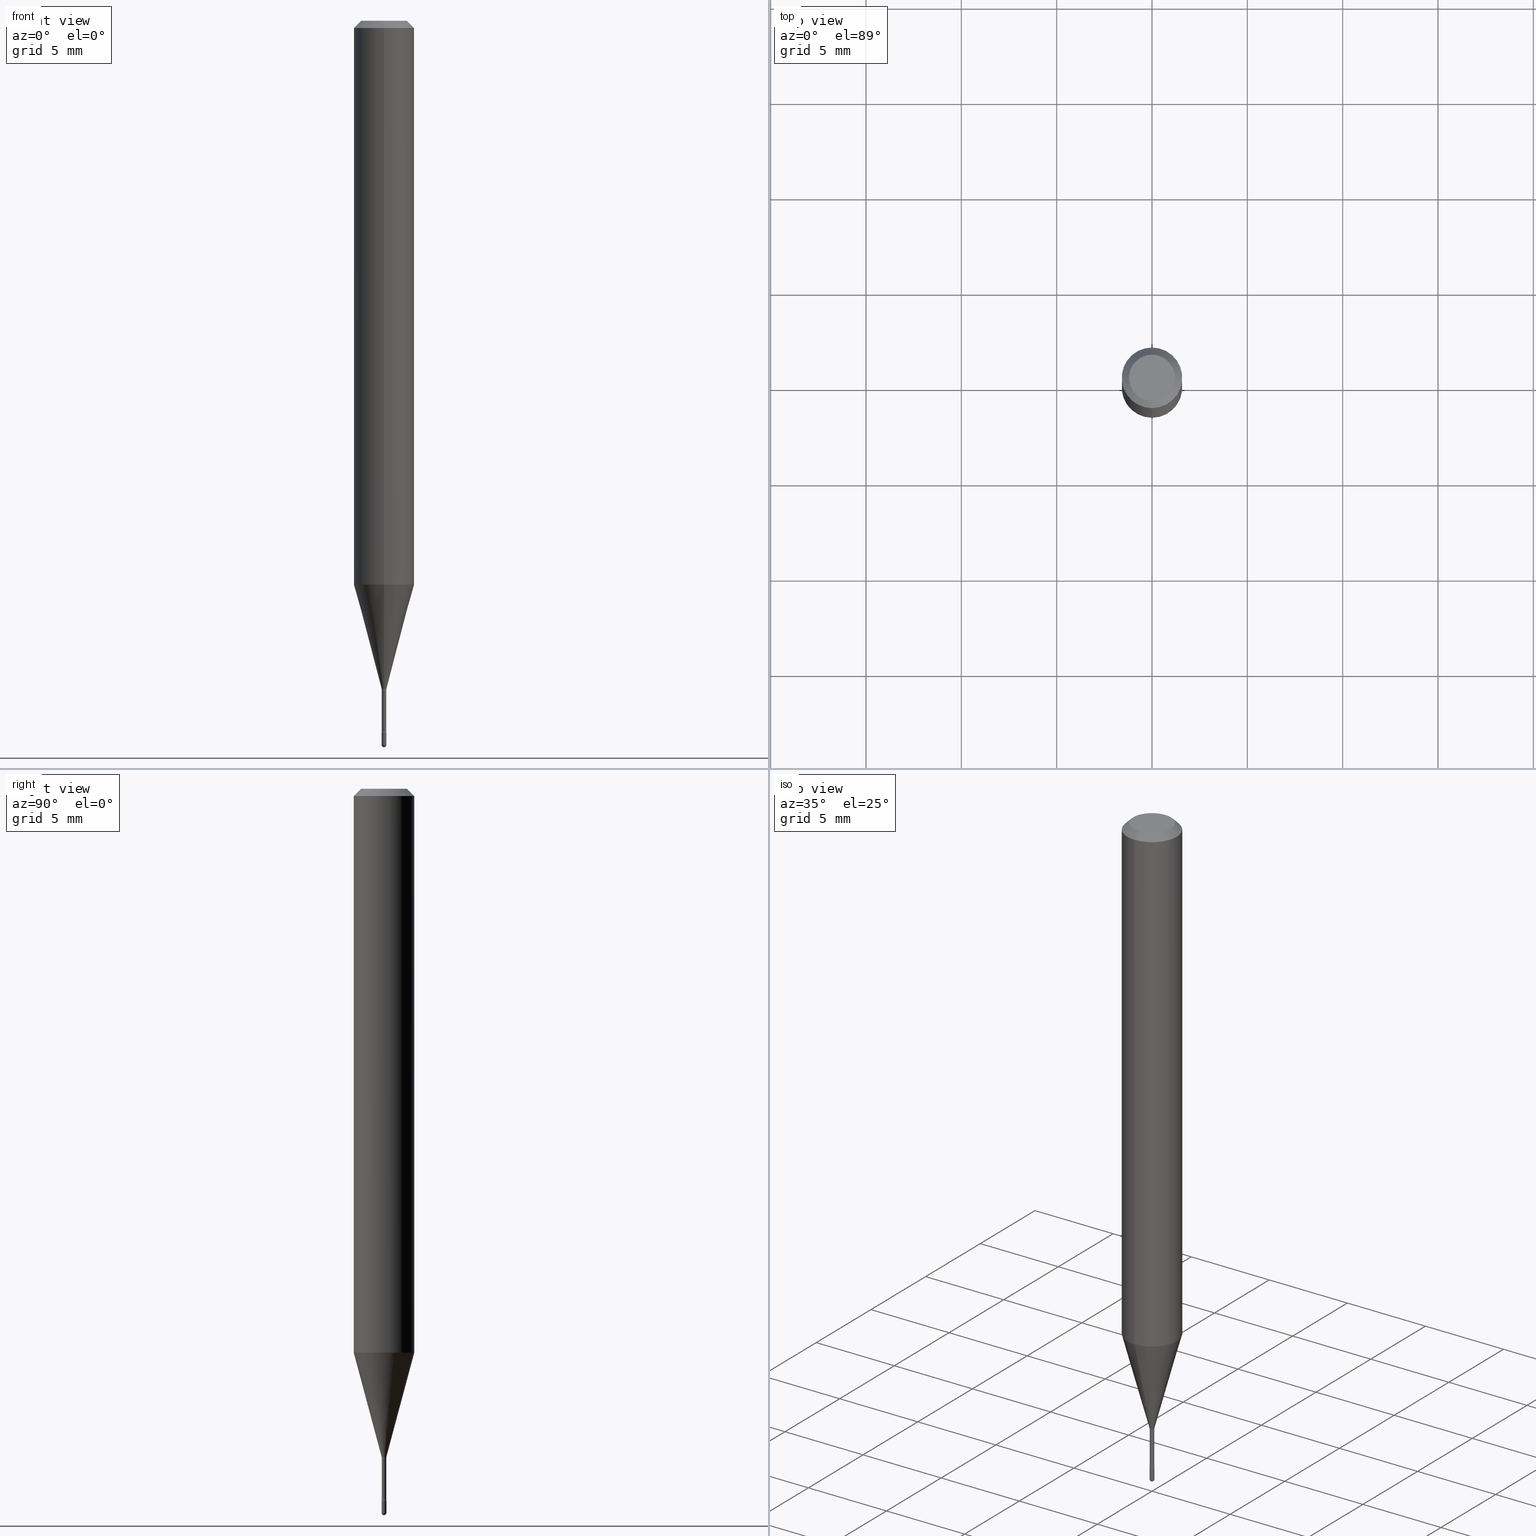
[diagram: canonical four-view strip — front | top / right | iso, engineering-drawing reading convention]
A machine part, canonical four-view strip (front | top / right | iso — engineering-drawing reading convention). The complete STEP part file that produces these views, byte-faithful:
ISO-10303-21;
HEADER;
FILE_DESCRIPTION (( 'STEP AP203' ),
    '1' );
FILE_NAME ('09784.STEP',
    '2024-04-10T01:15:53',
    ( '' ),
    ( '' ),
    'SwSTEP 2.0',
    'SolidWorks 2023',
    '' );
FILE_SCHEMA (( 'CONFIG_CONTROL_DESIGN' ));
ENDSEC;

DATA;
#1 = CARTESIAN_POINT ( 'NONE',  ( -0.004999999999999997502, -5.140593948046958933E-15, -1.495000000000000107 ) ) ;
#2 = CIRCLE ( 'NONE', #360, 0.01500000000000003240 ) ;
#3 = EDGE_CURVE ( 'NONE', #276, #558, #488, .T. ) ;
#4 = DIRECTION ( 'NONE',  ( -6.982962677686265133E-15, -1.000000000000000000, 0.000000000000000000 ) ) ;
#5 = EDGE_CURVE ( 'NONE', #304, #309, #97, .T. ) ;
#6 = CARTESIAN_POINT ( 'NONE',  ( 2.848553965249208882E-29, -4.063190057290084953E-15, -1.164287463322519312 ) ) ;
#7 = DIRECTION ( 'NONE',  ( -1.000000000000000000, 6.982962677686265922E-15, -4.883557194083112340E-29 ) ) ;
#8 = ORIENTED_EDGE ( 'NONE', *, *, #533, .T. ) ;
#9 = CARTESIAN_POINT ( 'NONE',  ( 3.491481338846726493E-17, 0.004999999999994865323, -1.470000000000000195 ) ) ;
#10 = DIRECTION ( 'NONE',  ( -2.446607092307177715E-29, 3.489851248329160132E-15, 1.000000000000000000 ) ) ;
#11 = AXIS2_PLACEMENT_3D ( 'NONE', #503, #19, #16 ) ;
#12 = AXIS2_PLACEMENT_3D ( 'NONE', #478, #86, #164 ) ;
#13 = DIRECTION ( 'NONE',  ( 1.000000000000000000, 0.000000000000000000, 0.000000000000000000 ) ) ;
#14 = FACE_OUTER_BOUND ( 'NONE', #565, .T. ) ;
#15 = APPROVAL_ROLE ( '' ) ;
#16 = DIRECTION ( 'NONE',  ( 1.000000000000000000, -6.982962677686336130E-15, 0.000000000000000000 ) ) ;
#17 = EDGE_LOOP ( 'NONE', ( #147, #405 ) ) ;
#18 = CALENDAR_DATE ( 2024, 9, 4 ) ;
#19 = DIRECTION ( 'NONE',  ( -2.445468806185136597E-29, 3.491481338843145583E-15, 1.000000000000000000 ) ) ;
#20 = EDGE_LOOP ( 'NONE', ( #424, #27, #563, #430, #238 ) ) ;
#21 = CALENDAR_DATE ( 2024, 9, 4 ) ;
#22 = SECURITY_CLASSIFICATION ( '', '', #193 ) ;
#23 = CARTESIAN_POINT ( 'NONE',  ( 3.669910638460787013E-31, -5.234776872493768941E-17, -0.01500000000000008271 ) ) ;
#24 = ADVANCED_FACE ( 'NONE', ( #14 ), #79, .T. ) ;
#25 = ORIENTED_EDGE ( 'NONE', *, *, #150, .T. ) ;
#26 = CARTESIAN_POINT ( 'NONE',  ( 0.004999999999999997502, -5.167392381487856456E-15, -1.470000000000000195 ) ) ;
#27 = ORIENTED_EDGE ( 'NONE', *, *, #135, .T. ) ;
#28 = CARTESIAN_POINT ( 'NONE',  ( 3.381149316398664900E-29, -4.822886437190006864E-15, -1.381974787463811083 ) ) ;
#29 = EDGE_LOOP ( 'NONE', ( #337, #560, #76, #165 ) ) ;
#30 = ADVANCED_FACE ( 'NONE', ( #268 ), #535, .T. ) ;
#31 = AXIS2_PLACEMENT_3D ( 'NONE', #58, #139, #311 ) ;
#32 = CONICAL_SURFACE ( 'NONE', #452, 0.005211112605663980289, 0.2617993877991499629 ) ;
#33 = DIRECTION ( 'NONE',  ( 1.000000000000000000, -6.982962677686265922E-15, 4.876176775795935793E-29 ) ) ;
#34 = ORIENTED_EDGE ( 'NONE', *, *, #335, .F. ) ;
#35 = CARTESIAN_POINT ( 'NONE',  ( -1.169113584055446105E-44, 1.669184350826100908E-30, 4.780733988912460139E-16 ) ) ;
#36 = VERTEX_POINT ( 'NONE', #439 ) ;
#37 = CYLINDRICAL_SURFACE ( 'NONE', #325, 0.004999999999999997502 ) ;
#38 = ORIENTED_EDGE ( 'NONE', *, *, #292, .F. ) ;
#39 = CYLINDRICAL_SURFACE ( 'NONE', #179, 0.004699999999999990644 ) ;
#40 = AXIS2_PLACEMENT_3D ( 'NONE', #188, #356, #318 ) ;
#41 = VECTOR ( 'NONE', #559, 39.37007874015748143 ) ;
#42 = EDGE_CURVE ( 'NONE', #479, #508, #414, .T. ) ;
#43 = ORIENTED_EDGE ( 'NONE', *, *, #192, .F. ) ;
#44 = CARTESIAN_POINT ( 'NONE',  ( -0.004999999999999997502, -5.140593948046958933E-15, -1.470000000000000195 ) ) ;
#45 = ORIENTED_EDGE ( 'NONE', *, *, #272, .F. ) ;
#46 = DESIGN_CONTEXT ( 'detailed design', #53, 'design' ) ;
#47 = CARTESIAN_POINT ( 'NONE',  ( -1.169113584055446105E-44, 1.669184350826100908E-30, 4.780733988912460139E-16 ) ) ;
#48 = ADVANCED_FACE ( 'NONE', ( #190 ), #486, .F. ) ;
#49 = EDGE_CURVE ( 'NONE', #137, #339, #451, .T. ) ;
#50 = DIRECTION ( 'NONE',  ( -2.445468806185136877E-29, 3.491481338843145188E-15, 1.000000000000000000 ) ) ;
#51 = CARTESIAN_POINT ( 'NONE',  ( 3.446132268440079635E-17, 0.004699999999994861066, -1.467015037688680135 ) ) ;
#52 = CIRCLE ( 'NONE', #317, 0.06250000000000000000 ) ;
#53 = APPLICATION_CONTEXT ( 'configuration controlled 3d designs of mechanical parts and assemblies' ) ;
#54 = VERTEX_POINT ( 'NONE', #441 ) ;
#55 = DIRECTION ( 'NONE',  ( -2.446607092307177715E-29, 3.489851248329160132E-15, 1.000000000000000000 ) ) ;
#56 = ORIENTED_EDGE ( 'NONE', *, *, #235, .F. ) ;
#57 = DIRECTION ( 'NONE',  ( -6.982962677686265922E-15, -1.000000000000000000, 3.489851248329160132E-15 ) ) ;
#58 = CARTESIAN_POINT ( 'NONE',  ( 3.655975865246779122E-29, -5.219764601570503141E-15, -1.495000000000000107 ) ) ;
#59 = CC_DESIGN_PERSON_AND_ORGANIZATION_ASSIGNMENT ( #239, #330, ( #22 ) ) ;
#60 = CIRCLE ( 'NONE', #107, 0.004999999999999997502 ) ;
#61 = PERSON_AND_ORGANIZATION ( #496, #443 ) ;
#62 = DIRECTION ( 'NONE',  ( -2.445468806185136877E-29, 3.491481338843145188E-15, 1.000000000000000000 ) ) ;
#63 = APPROVAL_ROLE ( '' ) ;
#64 = CARTESIAN_POINT ( 'NONE',  ( -3.638900483453828495E-17, -0.005211112605668789810, -1.378092501787273161 ) ) ;
#65 = EDGE_CURVE ( 'NONE', #54, #174, #403, .T. ) ;
#66 = EDGE_CURVE ( 'NONE', #465, #267, #256, .T. ) ;
#67 = DATE_AND_TIME ( #243, #99 ) ;
#68 = CARTESIAN_POINT ( 'NONE',  ( 0.000000000000000000, 0.000000000000000000, 0.000000000000000000 ) ) ;
#69 = VERTEX_POINT ( 'NONE', #1 ) ;
#70 = AXIS2_PLACEMENT_3D ( 'NONE', #326, #114, #194 ) ;
#71 = AXIS2_PLACEMENT_3D ( 'NONE', #346, #476, #33 ) ;
#72 = PERSON_AND_ORGANIZATION_ROLE ( 'design_supplier' ) ;
#73 = DIRECTION ( 'NONE',  ( 2.446607092307177715E-29, -3.489851248329160132E-15, -1.000000000000000000 ) ) ;
#74 = ORIENTED_EDGE ( 'NONE', *, *, #472, .T. ) ;
#75 = LINE ( 'NONE', #64, #125 ) ;
#76 = ORIENTED_EDGE ( 'NONE', *, *, #150, .F. ) ;
#77 = CARTESIAN_POINT ( 'NONE',  ( 3.589209395730405961E-29, -5.119664260595489869E-15, -1.467015037688680135 ) ) ;
#78 = EDGE_LOOP ( 'NONE', ( #34, #241, #247, #45 ) ) ;
#79 = CONICAL_SURFACE ( 'NONE', #422, 0.005211112605663980289, 0.2617993877991499629 ) ;
#80 = VECTOR ( 'NONE', #392, 39.37007874015748143 ) ;
#81 = CARTESIAN_POINT ( 'NONE',  ( 3.339550858072464225E-17, 0.004699999999999990644, 4.616710980240990353E-16 ) ) ;
#82 = VERTEX_POINT ( 'NONE', #51 ) ;
#83 = DIRECTION ( 'NONE',  ( -2.446607092307177715E-29, 3.489851248329160132E-15, 1.000000000000000000 ) ) ;
#84 = ORIENTED_EDGE ( 'NONE', *, *, #168, .T. ) ;
#85 = EDGE_CURVE ( 'NONE', #36, #518, #160, .T. ) ;
#86 = DIRECTION ( 'NONE',  ( 2.446607092307177715E-29, -3.489851248329160132E-15, -1.000000000000000000 ) ) ;
#87 = EDGE_LOOP ( 'NONE', ( #220, #228, #218, #387 ) ) ;
#88 = LINE ( 'NONE', #266, #90 ) ;
#89 = AXIS2_PLACEMENT_3D ( 'NONE', #28, #331, #110 ) ;
#90 = VECTOR ( 'NONE', #435, 39.37007874015748143 ) ;
#91 = ORIENTED_EDGE ( 'NONE', *, *, #428, .T. ) ;
#92 = CARTESIAN_POINT ( 'NONE',  ( 3.371650888728085005E-29, -4.809337837675370251E-15, -1.378092501787273161 ) ) ;
#93 = DIRECTION ( 'NONE',  ( -6.982962677686265922E-15, -1.000000000000000000, 0.000000000000000000 ) ) ;
#94 = EDGE_CURVE ( 'NONE', #82, #508, #510, .T. ) ;
#95 = CYLINDRICAL_SURFACE ( 'NONE', #554, 0.06250000000000000000 ) ;
#96 = DIRECTION ( 'NONE',  ( -1.000000000000000000, 7.105427357601001070E-15, -4.926315508542082329E-29 ) ) ;
#97 = CIRCLE ( 'NONE', #187, 0.04749999999999999362 ) ;
#98 = CYLINDRICAL_SURFACE ( 'NONE', #70, 0.004699999999999990644 ) ;
#99 = LOCAL_TIME ( 21, 15, 53.00000000000000000, #103 ) ;
#100 = ORIENTED_EDGE ( 'NONE', *, *, #42, .T. ) ;
#101 = FACE_OUTER_BOUND ( 'NONE', #299, .T. ) ;
#102 = ORIENTED_EDGE ( 'NONE', *, *, #166, .F. ) ;
#103 = COORDINATED_UNIVERSAL_TIME_OFFSET ( 5, 0, .BEHIND. ) ;
#104 = CARTESIAN_POINT ( 'NONE',  ( 3.491481338846802914E-17, 0.004999999999994800270, -1.495000000000000107 ) ) ;
#105 = VECTOR ( 'NONE', #495, 39.37007874015748143 ) ;
#106 = CIRCLE ( 'NONE', #224, 0.004699999999999980235 ) ;
#107 = AXIS2_PLACEMENT_3D ( 'NONE', #328, #202, #552 ) ;
#108 = CC_DESIGN_APPROVAL ( #447, ( #216 ) ) ;
#109 = CALENDAR_DATE ( 2024, 9, 4 ) ;
#110 = DIRECTION ( 'NONE',  ( -6.982962677686265922E-15, -1.000000000000000000, 0.000000000000000000 ) ) ;
#111 = ADVANCED_FACE ( 'NONE', ( #141 ), #98, .T. ) ;
#112 = PRODUCT_DEFINITION ( 'UNKNOWN', '', #216, #46 ) ;
#113 = DATE_TIME_ROLE ( 'creation_date' ) ;
#114 = DIRECTION ( 'NONE',  ( -2.446607092307177715E-29, 3.489851248329160132E-15, 1.000000000000000000 ) ) ;
#115 = CARTESIAN_POINT ( 'NONE',  ( 3.589209395730405961E-29, -5.119664260595489869E-15, -1.467015037688680135 ) ) ;
#116 = AXIS2_PLACEMENT_3D ( 'NONE', #373, #419, #249 ) ;
#117 = CONICAL_SURFACE ( 'NONE', #12, 0.06250000000000000000, 0.7853981633974483900 ) ;
#118 = DATE_TIME_ROLE ( 'classification_date' ) ;
#119 = DIRECTION ( 'NONE',  ( -6.982962677686265133E-15, -1.000000000000000000, 3.489851248329160132E-15 ) ) ;
#120 = FACE_OUTER_BOUND ( 'NONE', #371, .T. ) ;
#121 = APPROVAL ( #324, 'UNSPECIFIED' ) ;
#122 = VERTEX_POINT ( 'NONE', #464 ) ;
#123 = DIRECTION ( 'NONE',  ( -2.445468806185136597E-29, 3.491481338843145583E-15, 1.000000000000000000 ) ) ;
#124 = ORIENTED_EDGE ( 'NONE', *, *, #351, .F. ) ;
#125 = VECTOR ( 'NONE', #459, 39.37007874015748143 ) ;
#126 = DIRECTION ( 'NONE',  ( -2.446607092307177715E-29, 3.489851248329160132E-15, 1.000000000000000000 ) ) ;
#127 = ORIENTED_EDGE ( 'NONE', *, *, #517, .T. ) ;
#128 = ADVANCED_FACE ( 'NONE', ( #374 ), #151, .T. ) ;
#129 = FACE_OUTER_BOUND ( 'NONE', #314, .T. ) ;
#130 = EDGE_LOOP ( 'NONE', ( #261, #127, #259, #132, #124 ) ) ;
#131 = CARTESIAN_POINT ( 'NONE',  ( 3.339550858076062171E-17, 0.004699999999995178521, -1.381974787463811083 ) ) ;
#132 = ORIENTED_EDGE ( 'NONE', *, *, #498, .T. ) ;
#133 = CARTESIAN_POINT ( 'NONE',  ( -3.552713678796857452E-17, -0.005000000000005238969, -1.495000000000000107 ) ) ;
#134 = AXIS2_PLACEMENT_3D ( 'NONE', #182, #448, #532 ) ;
#135 = EDGE_CURVE ( 'NONE', #69, #436, #555, .T. ) ;
#136 = CIRCLE ( 'NONE', #423, 0.004999999999999997502 ) ;
#137 = VERTEX_POINT ( 'NONE', #505 ) ;
#138 = LINE ( 'NONE', #492, #154 ) ;
#139 = DIRECTION ( 'NONE',  ( -2.445468806185136597E-29, 3.491481338843145583E-15, 1.000000000000000000 ) ) ;
#140 = DIRECTION ( 'NONE',  ( 6.982962677686265922E-15, 1.000000000000000000, 0.000000000000000000 ) ) ;
#141 = FACE_OUTER_BOUND ( 'NONE', #29, .T. ) ;
#142 =( CONVERSION_BASED_UNIT ( 'INCH', #175 ) LENGTH_UNIT ( ) NAMED_UNIT ( #162 ) );
#143 = DIRECTION ( 'NONE',  ( 2.446607092307177434E-29, -3.489851248329160132E-15, -1.000000000000000000 ) ) ;
#144 = CIRCLE ( 'NONE', #289, 0.005000000000000040870 ) ;
#145 = EDGE_CURVE ( 'NONE', #251, #432, #246, .T. ) ;
#146 = DIRECTION ( 'NONE',  ( -2.446607092307177715E-29, 3.489851248329160132E-15, 1.000000000000000000 ) ) ;
#147 = ORIENTED_EDGE ( 'NONE', *, *, #42, .F. ) ;
#148 = EDGE_LOOP ( 'NONE', ( #254, #38, #263, #25 ) ) ;
#149 = APPROVAL_ROLE ( '' ) ;
#150 = EDGE_CURVE ( 'NONE', #558, #432, #264, .T. ) ;
#151 = CYLINDRICAL_SURFACE ( 'NONE', #197, 0.004999999999999997502 ) ;
#152 = EDGE_CURVE ( 'NONE', #508, #479, #368, .T. ) ;
#153 = VECTOR ( 'NONE', #62, 39.37007874015748143 ) ;
#154 = VECTOR ( 'NONE', #50, 39.37007874015748143 ) ;
#155 = PERSON_AND_ORGANIZATION_ROLE ( 'creator' ) ;
#156 = DIRECTION ( 'NONE',  ( 1.839019923739597949E-15, 0.2588190451025246253, 0.9659258262890670910 ) ) ;
#157 = APPROVAL_STATUS ( 'not_yet_approved' ) ;
#158 = FACE_OUTER_BOUND ( 'NONE', #87, .T. ) ;
#159 = CARTESIAN_POINT ( 'NONE',  ( -4.287811248607203282E-16, -0.06250000000000005551, -0.01499999999999986587 ) ) ;
#160 = CIRCLE ( 'NONE', #499, 0.005000000000000040870 ) ;
#161 = ADVANCED_BREP_SHAPE_REPRESENTATION ( '09784', ( #391, #537, #490 ), #257 ) ;
#162 = DIMENSIONAL_EXPONENTS ( 1.000000000000000000, 0.000000000000000000, 0.000000000000000000, 0.000000000000000000, 0.000000000000000000, 0.000000000000000000, 0.000000000000000000 ) ;
#163 = LINE ( 'NONE', #207, #41 ) ;
#164 = DIRECTION ( 'NONE',  ( 6.982962677686265922E-15, 1.000000000000000000, -3.483106191921935554E-15 ) ) ;
#165 = ORIENTED_EDGE ( 'NONE', *, *, #3, .F. ) ;
#166 = EDGE_CURVE ( 'NONE', #251, #267, #507, .T. ) ;
#167 = CARTESIAN_POINT ( 'NONE',  ( 3.371650888728085005E-29, -4.809337837675370251E-15, -1.378092501787273161 ) ) ;
#168 = EDGE_CURVE ( 'NONE', #122, #465, #75, .T. ) ;
#169 = ORIENTED_EDGE ( 'NONE', *, *, #65, .F. ) ;
#170 = AXIS2_PLACEMENT_3D ( 'NONE', #278, #397, #445 ) ;
#171 = DIRECTION ( 'NONE',  ( -1.000000000000000000, 6.982962677686265922E-15, -4.883557194083113462E-29 ) ) ;
#172 = ORIENTED_EDGE ( 'NONE', *, *, #168, .F. ) ;
#173 = DIRECTION ( 'NONE',  ( -1.000000000000000000, 6.982962677686265922E-15, -4.883557194083112340E-29 ) ) ;
#174 = VERTEX_POINT ( 'NONE', #104 ) ;
#175 = LENGTH_MEASURE_WITH_UNIT ( LENGTH_MEASURE( 0.02539999999999999897 ), #316 );
#176 = ORIENTED_EDGE ( 'NONE', *, *, #3, .T. ) ;
#177 = PRODUCT_RELATED_PRODUCT_CATEGORY ( 'detail', '', ( #244 ) ) ;
#178 = CARTESIAN_POINT ( 'NONE',  ( -4.364351673553631225E-16, -0.06250000000000406619, -1.164287463322519089 ) ) ;
#179 = AXIS2_PLACEMENT_3D ( 'NONE', #35, #126, #386 ) ;
#180 = DIRECTION ( 'NONE',  ( -6.982962677686265922E-15, -1.000000000000000000, 3.489851248329160132E-15 ) ) ;
#181 = DIRECTION ( 'NONE',  ( 1.000000000000000000, -6.982962677686336130E-15, 0.000000000000000000 ) ) ;
#182 = CARTESIAN_POINT ( 'NONE',  ( 1.399769189447756949E-16, 0.01969999999999489174, -1.467015037688680135 ) ) ;
#183 = DIRECTION ( 'NONE',  ( -1.000000000000000000, 6.982962677686265922E-15, -4.883557194083113462E-29 ) ) ;
#184 = ORIENTED_EDGE ( 'NONE', *, *, #455, .F. ) ;
#185 = ADVANCED_FACE ( 'NONE', ( #158 ), #442, .F. ) ;
#186 = DIRECTION ( 'NONE',  ( -2.446607092307177434E-29, 3.489851248329160132E-15, 1.000000000000000000 ) ) ;
#187 = AXIS2_PLACEMENT_3D ( 'NONE', #399, #10, #358 ) ;
#188 = CARTESIAN_POINT ( 'NONE',  ( 3.669910638460787013E-31, -5.234776872493768941E-17, -0.01500000000000008271 ) ) ;
#189 = CIRCLE ( 'NONE', #206, 0.004999999999999997502 ) ;
#190 = FACE_OUTER_BOUND ( 'NONE', #270, .T. ) ;
#191 = PRODUCT_DEFINITION_SHAPE ( 'NONE', 'NONE',  #112 ) ;
#192 = EDGE_CURVE ( 'NONE', #276, #82, #315, .T. ) ;
#193 = SECURITY_CLASSIFICATION_LEVEL ( 'unclassified' ) ;
#194 = DIRECTION ( 'NONE',  ( -6.982962677686266711E-15, -1.000000000000000000, 3.489851248329160526E-15 ) ) ;
#195 = APPROVAL_DATE_TIME ( #372, #121 ) ;
#196 = LINE ( 'NONE', #159, #232 ) ;
#197 = AXIS2_PLACEMENT_3D ( 'NONE', #68, #290, #412 ) ;
#198 = ORIENTED_EDGE ( 'NONE', *, *, #428, .F. ) ;
#199 = DATE_AND_TIME ( #21, #527 ) ;
#200 = DIRECTION ( 'NONE',  ( 6.982962677686265922E-15, 1.000000000000000000, -3.483106191921935554E-15 ) ) ;
#201 = PERSON_AND_ORGANIZATION_ROLE ( 'creator' ) ;
#202 = DIRECTION ( 'NONE',  ( -2.445468806185136597E-29, 3.491481338843145583E-15, 1.000000000000000000 ) ) ;
#203 = CARTESIAN_POINT ( 'NONE',  ( 3.381149316398664900E-29, -4.822886437190006864E-15, -1.381974787463811083 ) ) ;
#204 = ORIENTED_EDGE ( 'NONE', *, *, #66, .F. ) ;
#205 = AXIS2_PLACEMENT_3D ( 'NONE', #203, #549, #512 ) ;
#206 = AXIS2_PLACEMENT_3D ( 'NONE', #514, #123, #340 ) ;
#207 = CARTESIAN_POINT ( 'NONE',  ( -4.364351673553916201E-16, -0.06250000000000000000, 6.961891019118185468E-16 ) ) ;
#208 = ORIENTED_EDGE ( 'NONE', *, *, #491, .T. ) ;
#209 = ADVANCED_FACE ( 'NONE', ( #453 ), #461, .T. ) ;
#210 = CC_DESIGN_PERSON_AND_ORGANIZATION_ASSIGNMENT ( #61, #551, ( #244 ) ) ;
#211 = FACE_OUTER_BOUND ( 'NONE', #20, .T. ) ;
#212 = EDGE_LOOP ( 'NONE', ( #349, #566, #378, #401 ) ) ;
#213 = DIRECTION ( 'NONE',  ( 1.000000000000000000, -6.982962677686265922E-15, 4.883557194083112340E-29 ) ) ;
#214 = ORIENTED_EDGE ( 'NONE', *, *, #271, .F. ) ;
#215 = AXIS2_PLACEMENT_3D ( 'NONE', #529, #143, #450 ) ;
#216 = PRODUCT_DEFINITION_FORMATION_WITH_SPECIFIED_SOURCE ( 'ANY', '', #244, .NOT_KNOWN. ) ;
#217 = CARTESIAN_POINT ( 'NONE',  ( 0.000000000000000000, 0.000000000000000000, 0.000000000000000000 ) ) ;
#218 = ORIENTED_EDGE ( 'NONE', *, *, #255, .T. ) ;
#219 = CARTESIAN_POINT ( 'NONE',  ( 3.655975865246779122E-29, -5.219764601570503141E-15, -1.495000000000000107 ) ) ;
#220 = ORIENTED_EDGE ( 'NONE', *, *, #472, .F. ) ;
#221 = DIRECTION ( 'NONE',  ( -6.982962677686265922E-15, -1.000000000000000000, 3.489851248329160132E-15 ) ) ;
#222 = VERTEX_POINT ( 'NONE', #26 ) ;
#223 = CLOSED_SHELL ( 'NONE', ( #185, #111, #550, #367, #515, #531, #24, #30, #209, #48, #556, #312, #382, #227 ) ) ;
#224 = AXIS2_PLACEMENT_3D ( 'NONE', #77, #396, #4 ) ;
#225 = DIRECTION ( 'NONE',  ( -7.105427357600999492E-15, -1.000000000000000000, 0.000000000000000000 ) ) ;
#226 = DIRECTION ( 'NONE',  ( -6.982962677686265922E-15, -1.000000000000000000, 0.000000000000000000 ) ) ;
#227 = ADVANCED_FACE ( 'NONE', ( #407 ), #359, .F. ) ;
#228 = ORIENTED_EDGE ( 'NONE', *, *, #145, .T. ) ;
#229 = DIRECTION ( 'NONE',  ( -2.445468806185136597E-29, 3.491481338843145583E-15, 1.000000000000000000 ) ) ;
#230 = EDGE_LOOP ( 'NONE', ( #354, #274, #176, #334 ) ) ;
#231 = CARTESIAN_POINT ( 'NONE',  ( 3.590520199212940529E-29, -5.117787115402200346E-15, -1.467015037688680135 ) ) ;
#232 = VECTOR ( 'NONE', #286, 39.37007874015748143 ) ;
#233 = DIRECTION ( 'NONE',  ( -2.446607092307177715E-29, 3.489851248329160132E-15, 1.000000000000000000 ) ) ;
#234 = APPROVAL_PERSON_ORGANIZATION ( #321, #447, #15 ) ;
#235 = EDGE_CURVE ( 'NONE', #518, #54, #433, .T. ) ;
#236 = APPROVAL_DATE_TIME ( #284, #447 ) ;
#237 = DIRECTION ( 'NONE',  ( -2.446607092307177715E-29, 3.489851248329160132E-15, 1.000000000000000000 ) ) ;
#238 = ORIENTED_EDGE ( 'NONE', *, *, #65, .T. ) ;
#239 = PERSON_AND_ORGANIZATION ( #496, #443 ) ;
#240 = CARTESIAN_POINT ( 'NONE',  ( 3.382556920017844891E-29, -4.820870668691518446E-15, -1.381974787463811083 ) ) ;
#241 = ORIENTED_EDGE ( 'NONE', *, *, #85, .T. ) ;
#242 = UNCERTAINTY_MEASURE_WITH_UNIT (LENGTH_MEASURE( 1.000000000000000082E-05 ), #142, 'distance_accuracy_value', 'NONE');
#243 = CALENDAR_DATE ( 2024, 9, 4 ) ;
#244 = PRODUCT ( '09784', '09784', '', ( #506 ) ) ;
#245 = DIRECTION ( 'NONE',  ( -2.446607092307177715E-29, 3.489851248329160132E-15, 1.000000000000000000 ) ) ;
#246 = CIRCLE ( 'NONE', #480, 0.01500000000000002720 ) ;
#247 = ORIENTED_EDGE ( 'NONE', *, *, #517, .F. ) ;
#248 = AXIS2_PLACEMENT_3D ( 'NONE', #273, #7, #319 ) ;
#249 = DIRECTION ( 'NONE',  ( -6.982962677686265133E-15, -1.000000000000000000, 3.489851248329160132E-15 ) ) ;
#250 = CC_DESIGN_PERSON_AND_ORGANIZATION_ASSIGNMENT ( #458, #72, ( #216 ) ) ;
#251 = VERTEX_POINT ( 'NONE', #365 ) ;
#252 = ORIENTED_EDGE ( 'NONE', *, *, #49, .F. ) ;
#253 = SPHERICAL_SURFACE ( 'NONE', #562, 0.005000000000000040870 ) ;
#254 = ORIENTED_EDGE ( 'NONE', *, *, #145, .F. ) ;
#255 = EDGE_CURVE ( 'NONE', #432, #558, #333, .T. ) ;
#256 = CIRCLE ( 'NONE', #468, 0.06250000000000000000 ) ;
#257 =( GEOMETRIC_REPRESENTATION_CONTEXT ( 3 ) GLOBAL_UNCERTAINTY_ASSIGNED_CONTEXT ( ( #242 ) ) GLOBAL_UNIT_ASSIGNED_CONTEXT ( ( #142, #275, #348 ) ) REPRESENTATION_CONTEXT ( 'NONE', 'WORKASPACE' ) );
#258 = EDGE_CURVE ( 'NONE', #309, #137, #196, .T. ) ;
#259 = ORIENTED_EDGE ( 'NONE', *, *, #235, .T. ) ;
#260 = CARTESIAN_POINT ( 'NONE',  ( 4.440892098500913110E-16, 0.06249999999999995837, -0.01500000000000030129 ) ) ;
#261 = ORIENTED_EDGE ( 'NONE', *, *, #135, .F. ) ;
#262 = FACE_OUTER_BOUND ( 'NONE', #230, .T. ) ;
#263 = ORIENTED_EDGE ( 'NONE', *, *, #473, .T. ) ;
#264 = CIRCLE ( 'NONE', #205, 0.004700000000000001919 ) ;
#265 = VECTOR ( 'NONE', #83, 39.37007874015748143 ) ;
#266 = CARTESIAN_POINT ( 'NONE',  ( 4.364351673553919652E-16, 0.06249999999999995143, -0.01500000000000030129 ) ) ;
#267 = VERTEX_POINT ( 'NONE', #417 ) ;
#268 = FACE_OUTER_BOUND ( 'NONE', #212, .T. ) ;
#269 = CARTESIAN_POINT ( 'NONE',  ( 3.655975865246779122E-29, -5.219764601570503141E-15, -1.495000000000000107 ) ) ;
#270 = EDGE_LOOP ( 'NONE', ( #383, #301 ) ) ;
#271 = EDGE_CURVE ( 'NONE', #267, #465, #553, .T. ) ;
#272 = EDGE_CURVE ( 'NONE', #174, #69, #60, .T. ) ;
#273 = CARTESIAN_POINT ( 'NONE',  ( -1.375643647503856385E-16, -0.01970000000000482129, -1.381974787463811083 ) ) ;
#274 = ORIENTED_EDGE ( 'NONE', *, *, #455, .T. ) ;
#275 =( NAMED_UNIT ( * ) PLANE_ANGLE_UNIT ( ) SI_UNIT ( $, .RADIAN. ) );
#276 = VERTEX_POINT ( 'NONE', #303 ) ;
#277 = CARTESIAN_POINT ( 'NONE',  ( 4.440892098500625669E-16, 0.06250000000000000000, 2.599576958706735797E-16 ) ) ;
#278 = CARTESIAN_POINT ( 'NONE',  ( 3.596512425691551313E-29, -5.130081335043865090E-15, -1.470000000000000195 ) ) ;
#279 = COORDINATED_UNIVERSAL_TIME_OFFSET ( 5, 0, .BEHIND. ) ;
#280 = DIRECTION ( 'NONE',  ( 7.105427357601000281E-15, 1.000000000000000000, 0.000000000000000000 ) ) ;
#281 = CIRCLE ( 'NONE', #306, 0.004999999999999997502 ) ;
#282 = APPROVAL_DATE_TIME ( #548, #409 ) ;
#283 = CARTESIAN_POINT ( 'NONE',  ( 2.848553965249208882E-29, -4.063190057290084953E-15, -1.164287463322519312 ) ) ;
#284 = DATE_AND_TIME ( #364, #415 ) ;
#285 = EDGE_CURVE ( 'NONE', #465, #137, #163, .T. ) ;
#286 = DIRECTION ( 'NONE',  ( -4.851104656540964275E-15, -0.7071067811865500152, -0.7071067811865450192 ) ) ;
#287 = AXIS2_PLACEMENT_3D ( 'NONE', #23, #73, #200 ) ;
#288 = ORIENTED_EDGE ( 'NONE', *, *, #285, .F. ) ;
#289 = AXIS2_PLACEMENT_3D ( 'NONE', #219, #213, #429 ) ;
#290 = DIRECTION ( 'NONE',  ( -2.445468806185136597E-29, 3.491481338843145583E-15, 1.000000000000000000 ) ) ;
#291 = ORIENTED_EDGE ( 'NONE', *, *, #509, .T. ) ;
#292 = EDGE_CURVE ( 'NONE', #122, #251, #395, .T. ) ;
#293 = EDGE_LOOP ( 'NONE', ( #184, #389, #475, #198 ) ) ;
#294 = FACE_OUTER_BOUND ( 'NONE', #380, .T. ) ;
#295 = ORIENTED_EDGE ( 'NONE', *, *, #258, .T. ) ;
#296 = VECTOR ( 'NONE', #156, 39.37007874015748854 ) ;
#297 = AXIS2_PLACEMENT_3D ( 'NONE', #9, #186, #57 ) ;
#298 = DIRECTION ( 'NONE',  ( -2.446607092307177715E-29, 3.489851248329160132E-15, 1.000000000000000000 ) ) ;
#299 = EDGE_LOOP ( 'NONE', ( #484, #344, #204, #172 ) ) ;
#300 = DIRECTION ( 'NONE',  ( -6.982962677686265922E-15, -1.000000000000000000, 0.000000000000000000 ) ) ;
#301 = ORIENTED_EDGE ( 'NONE', *, *, #390, .T. ) ;
#302 = CC_DESIGN_PERSON_AND_ORGANIZATION_ASSIGNMENT ( #540, #201, ( #112 ) ) ;
#303 = CARTESIAN_POINT ( 'NONE',  ( -3.281992458508942163E-17, -0.004700000000005100272, -1.467015037688680135 ) ) ;
#304 = VERTEX_POINT ( 'NONE', #474 ) ;
#305 = AXIS2_PLACEMENT_3D ( 'NONE', #283, #369, #547 ) ;
#306 = AXIS2_PLACEMENT_3D ( 'NONE', #307, #229, #528 ) ;
#307 = CARTESIAN_POINT ( 'NONE',  ( 3.594839145092150820E-29, -5.132477568099424807E-15, -1.470000000000000195 ) ) ;
#308 = APPLICATION_CONTEXT ( 'configuration controlled 3d designs of mechanical parts and assemblies' ) ;
#309 = VERTEX_POINT ( 'NONE', #336 ) ;
#310 = DIRECTION ( 'NONE',  ( -6.982962677686265922E-15, -1.000000000000000000, 3.489851248329160132E-15 ) ) ;
#311 = DIRECTION ( 'NONE',  ( 1.000000000000000000, -6.982962677686336130E-15, 0.000000000000000000 ) ) ;
#312 = ADVANCED_FACE ( 'NONE', ( #338 ), #376, .F. ) ;
#313 = DIRECTION ( 'NONE',  ( -2.445468806185136597E-29, 3.491481338843145583E-15, 1.000000000000000000 ) ) ;
#314 = EDGE_LOOP ( 'NONE', ( #291, #408 ) ) ;
#315 = CIRCLE ( 'NONE', #384, 0.004699999999999980235 ) ;
#316 =( LENGTH_UNIT ( ) NAMED_UNIT ( * ) SI_UNIT ( $, .METRE. ) );
#317 = AXIS2_PLACEMENT_3D ( 'NONE', #355, #55, #446 ) ;
#318 = DIRECTION ( 'NONE',  ( -6.982962677686265922E-15, -1.000000000000000000, 3.483106191921935554E-15 ) ) ;
#319 = DIRECTION ( 'NONE',  ( -6.982962677686265133E-15, -1.000000000000000000, 0.000000000000000000 ) ) ;
#320 = DIRECTION ( 'NONE',  ( -2.446607092307177715E-29, 3.489851248329160132E-15, 1.000000000000000000 ) ) ;
#321 = PERSON_AND_ORGANIZATION ( #496, #443 ) ;
#322 = CC_DESIGN_DATE_AND_TIME_ASSIGNMENT ( #199, #118, ( #22 ) ) ;
#323 = CARTESIAN_POINT ( 'NONE',  ( 3.596512425691551313E-29, -5.130081335043865090E-15, -1.470000000000000195 ) ) ;
#324 = APPROVAL_STATUS ( 'not_yet_approved' ) ;
#325 = AXIS2_PLACEMENT_3D ( 'NONE', #217, #379, #519 ) ;
#326 = CARTESIAN_POINT ( 'NONE',  ( -1.169113584055446105E-44, 1.669184350826100908E-30, 4.780733988912460139E-16 ) ) ;
#327 = CC_DESIGN_APPROVAL ( #121, ( #22 ) ) ;
#328 = CARTESIAN_POINT ( 'NONE',  ( 3.655975865246779122E-29, -5.219764601570503141E-15, -1.495000000000000107 ) ) ;
#329 = EDGE_CURVE ( 'NONE', #82, #432, #421, .T. ) ;
#330 = PERSON_AND_ORGANIZATION_ROLE ( 'classification_officer' ) ;
#331 = DIRECTION ( 'NONE',  ( -2.446607092307177715E-29, 3.489851248329160132E-15, 1.000000000000000000 ) ) ;
#332 = DIRECTION ( 'NONE',  ( 1.000000000000000000, -7.105427357601001070E-15, 4.926295545690779637E-29 ) ) ;
#333 = CIRCLE ( 'NONE', #89, 0.004700000000000001919 ) ;
#334 = ORIENTED_EDGE ( 'NONE', *, *, #255, .F. ) ;
#335 = EDGE_CURVE ( 'NONE', #36, #174, #144, .T. ) ;
#336 = CARTESIAN_POINT ( 'NONE',  ( -3.773273898774340269E-16, -0.04749999999999999362, 8.294347292467538093E-17 ) ) ;
#337 = ORIENTED_EDGE ( 'NONE', *, *, #192, .T. ) ;
#338 = FACE_OUTER_BOUND ( 'NONE', #526, .T. ) ;
#339 = VERTEX_POINT ( 'NONE', #260 ) ;
#340 = DIRECTION ( 'NONE',  ( 1.000000000000000000, -6.982962677686336130E-15, 0.000000000000000000 ) ) ;
#341 = ORIENTED_EDGE ( 'NONE', *, *, #66, .T. ) ;
#342 = APPROVAL_PERSON_ORGANIZATION ( #362, #409, #149 ) ;
#343 = DIRECTION ( 'NONE',  ( 6.982962677686265922E-15, 1.000000000000000000, 0.000000000000000000 ) ) ;
#344 = ORIENTED_EDGE ( 'NONE', *, *, #166, .T. ) ;
#345 = CC_DESIGN_PERSON_AND_ORGANIZATION_ASSIGNMENT ( #456, #155, ( #216 ) ) ;
#346 = CARTESIAN_POINT ( 'NONE',  ( 3.594839145092150820E-29, -5.132477568099424807E-15, -1.470000000000000195 ) ) ;
#347 = ORIENTED_EDGE ( 'NONE', *, *, #335, .T. ) ;
#348 =( NAMED_UNIT ( * ) SI_UNIT ( $, .STERADIAN. ) SOLID_ANGLE_UNIT ( ) );
#349 = ORIENTED_EDGE ( 'NONE', *, *, #491, .F. ) ;
#350 = AXIS2_PLACEMENT_3D ( 'NONE', #564, #171, #343 ) ;
#351 = EDGE_CURVE ( 'NONE', #436, #222, #189, .T. ) ;
#352 = CARTESIAN_POINT ( 'NONE',  ( 3.371650888728085005E-29, -4.809337837675370251E-15, -1.378092501787273161 ) ) ;
#353 = ADVANCED_FACE ( 'NONE', ( #129 ), #381, .T. ) ;
#354 = ORIENTED_EDGE ( 'NONE', *, *, #329, .F. ) ;
#355 = CARTESIAN_POINT ( 'NONE',  ( 3.669910638460787013E-31, -5.234776872493768941E-17, -0.01500000000000008271 ) ) ;
#356 = DIRECTION ( 'NONE',  ( -2.446607092307177715E-29, 3.489851248329160132E-15, 1.000000000000000000 ) ) ;
#357 = FACE_OUTER_BOUND ( 'NONE', #17, .T. ) ;
#358 = DIRECTION ( 'NONE',  ( -6.982962677686266711E-15, -1.000000000000000000, 3.489851248329160526E-15 ) ) ;
#359 = TOROIDAL_SURFACE ( 'NONE', #116, 0.01970000000000000223, 0.01500000000000002720 ) ;
#360 = AXIS2_PLACEMENT_3D ( 'NONE', #522, #173, #524 ) ;
#361 = EDGE_LOOP ( 'NONE', ( #418, #420, #523, #8 ) ) ;
#362 = PERSON_AND_ORGANIZATION ( #496, #443 ) ;
#363 = CARTESIAN_POINT ( 'NONE',  ( 3.655975865246779122E-29, -5.219764601570503141E-15, -1.495000000000000107 ) ) ;
#364 = CALENDAR_DATE ( 2024, 9, 4 ) ;
#365 = CARTESIAN_POINT ( 'NONE',  ( 2.405581959609747133E-16, 0.005211112605659169901, -1.378092501787273161 ) ) ;
#366 = APPROVAL_STATUS ( 'not_yet_approved' ) ;
#367 = ADVANCED_FACE ( 'NONE', ( #294 ), #117, .T. ) ;
#368 = CIRCLE ( 'NONE', #544, 0.004999999999999995767 ) ;
#369 = DIRECTION ( 'NONE',  ( -2.446607092307177715E-29, 3.489851248329160132E-15, 1.000000000000000000 ) ) ;
#370 = CC_DESIGN_DATE_AND_TIME_ASSIGNMENT ( #67, #113, ( #112 ) ) ;
#371 = EDGE_LOOP ( 'NONE', ( #470, #347, #169, #56 ) ) ;
#372 = DATE_AND_TIME ( #18, #502 ) ;
#373 = CARTESIAN_POINT ( 'NONE',  ( 3.382556920017844891E-29, -4.820870668691518446E-15, -1.381974787463811083 ) ) ;
#374 = FACE_OUTER_BOUND ( 'NONE', #130, .T. ) ;
#375 = CARTESIAN_POINT ( 'NONE',  ( 1.399769189447735256E-16, 0.01969999999999518317, -1.381974787463811083 ) ) ;
#376 = TOROIDAL_SURFACE ( 'NONE', #425, 0.01970000000000000917, 0.01500000000000003240 ) ;
#377 = CARTESIAN_POINT ( 'NONE',  ( 2.031830989219869408E-45, -2.882657469951126378E-31, -8.282446137095973370E-17 ) ) ;
#378 = ORIENTED_EDGE ( 'NONE', *, *, #285, .T. ) ;
#379 = DIRECTION ( 'NONE',  ( -2.445468806185136597E-29, 3.491481338843145583E-15, 1.000000000000000000 ) ) ;
#380 = EDGE_LOOP ( 'NONE', ( #525, #295, #513, #521 ) ) ;
#381 = PLANE ( 'NONE',  #71 ) ;
#382 = ADVANCED_FACE ( 'NONE', ( #262 ), #39, .T. ) ;
#383 = ORIENTED_EDGE ( 'NONE', *, *, #5, .T. ) ;
#384 = AXIS2_PLACEMENT_3D ( 'NONE', #115, #416, #462 ) ;
#385 = CIRCLE ( 'NONE', #404, 0.005211112605663980289 ) ;
#386 = DIRECTION ( 'NONE',  ( -6.982962677686266711E-15, -1.000000000000000000, 3.489851248329160526E-15 ) ) ;
#387 = ORIENTED_EDGE ( 'NONE', *, *, #473, .F. ) ;
#388 = DIRECTION ( 'NONE',  ( -6.982962677686266711E-15, -1.000000000000000000, 3.489851248329160526E-15 ) ) ;
#389 = ORIENTED_EDGE ( 'NONE', *, *, #94, .T. ) ;
#390 = EDGE_CURVE ( 'NONE', #309, #304, #469, .T. ) ;
#391 = MANIFOLD_SOLID_BREP ( 'Body-Move/Copy2[1]', #561 ) ;
#392 = DIRECTION ( 'NONE',  ( -2.446607092307177715E-29, 3.489851248329160132E-15, 1.000000000000000000 ) ) ;
#393 = DIRECTION ( 'NONE',  ( -2.446607092307177715E-29, 3.489851248329160132E-15, 1.000000000000000000 ) ) ;
#394 = AXIS2_PLACEMENT_3D ( 'NONE', #47, #393, #180 ) ;
#395 = CIRCLE ( 'NONE', #520, 0.005211112605663980289 ) ;
#396 = DIRECTION ( 'NONE',  ( -2.446607092307177715E-29, 3.489851248329160132E-15, 1.000000000000000000 ) ) ;
#397 = DIRECTION ( 'NONE',  ( -2.446607092307177715E-29, 3.489851248329160132E-15, 1.000000000000000000 ) ) ;
#398 = CARTESIAN_POINT ( 'NONE',  ( -1.169113584055446105E-44, 1.669184350826100908E-30, 4.780733988912460139E-16 ) ) ;
#399 = CARTESIAN_POINT ( 'NONE',  ( 2.031830989219869408E-45, -2.882657469951126378E-31, -8.282446137095973370E-17 ) ) ;
#400 = DIRECTION ( 'NONE',  ( -2.446607092307177715E-29, 3.489851248329160132E-15, 1.000000000000000000 ) ) ;
#401 = ORIENTED_EDGE ( 'NONE', *, *, #533, .F. ) ;
#402 = ADVANCED_FACE ( 'NONE', ( #211 ), #37, .T. ) ;
#403 = CIRCLE ( 'NONE', #31, 0.004999999999999997502 ) ;
#404 = AXIS2_PLACEMENT_3D ( 'NONE', #352, #146, #226 ) ;
#405 = ORIENTED_EDGE ( 'NONE', *, *, #152, .F. ) ;
#406 = APPLICATION_PROTOCOL_DEFINITION ( 'international standard', 'config_control_design', 1994, #308 ) ;
#407 = FACE_OUTER_BOUND ( 'NONE', #148, .T. ) ;
#408 = ORIENTED_EDGE ( 'NONE', *, *, #351, .T. ) ;
#409 = APPROVAL ( #366, 'UNSPECIFIED' ) ;
#410 = ADVANCED_FACE ( 'NONE', ( #431 ), #466, .T. ) ;
#411 = COORDINATED_UNIVERSAL_TIME_OFFSET ( 5, 0, .BEHIND. ) ;
#412 = DIRECTION ( 'NONE',  ( 1.000000000000000000, -6.982962677686266711E-15, 4.876176775795936914E-29 ) ) ;
#413 = COORDINATED_UNIVERSAL_TIME_OFFSET ( 5, 0, .BEHIND. ) ;
#414 = CIRCLE ( 'NONE', #170, 0.004999999999999995767 ) ;
#415 = LOCAL_TIME ( 21, 15, 53.00000000000000000, #279 ) ;
#416 = DIRECTION ( 'NONE',  ( -2.446607092307177715E-29, 3.489851248329160132E-15, 1.000000000000000000 ) ) ;
#417 = CARTESIAN_POINT ( 'NONE',  ( 4.440892098500909166E-16, 0.06249999999999591993, -1.164287463322519756 ) ) ;
#418 = ORIENTED_EDGE ( 'NONE', *, *, #258, .F. ) ;
#419 = DIRECTION ( 'NONE',  ( -2.446607092307177715E-29, 3.489851248329160132E-15, 1.000000000000000000 ) ) ;
#420 = ORIENTED_EDGE ( 'NONE', *, *, #5, .F. ) ;
#421 = LINE ( 'NONE', #81, #265 ) ;
#422 = AXIS2_PLACEMENT_3D ( 'NONE', #541, #320, #93 ) ;
#423 = AXIS2_PLACEMENT_3D ( 'NONE', #269, #313, #181 ) ;
#424 = ORIENTED_EDGE ( 'NONE', *, *, #272, .T. ) ;
#425 = AXIS2_PLACEMENT_3D ( 'NONE', #557, #516, #426 ) ;
#426 = DIRECTION ( 'NONE',  ( -6.982962677686265922E-15, -1.000000000000000000, 3.489851248329160132E-15 ) ) ;
#427 = EDGE_LOOP ( 'NONE', ( #341, #208, #252, #288 ) ) ;
#428 = EDGE_CURVE ( 'NONE', #276, #479, #2, .T. ) ;
#429 = DIRECTION ( 'NONE',  ( 6.982962677686265133E-15, 1.000000000000000000, 0.000000000000000000 ) ) ;
#430 = ORIENTED_EDGE ( 'NONE', *, *, #498, .F. ) ;
#431 = FACE_OUTER_BOUND ( 'NONE', #78, .T. ) ;
#432 = VERTEX_POINT ( 'NONE', #131 ) ;
#433 = CIRCLE ( 'NONE', #11, 0.004999999999999997502 ) ;
#434 = CIRCLE ( 'NONE', #248, 0.01500000000000002720 ) ;
#435 = DIRECTION ( 'NONE',  ( 4.937700262164548042E-15, 0.7071067811865451302, -0.7071067811865499042 ) ) ;
#436 = VERTEX_POINT ( 'NONE', #44 ) ;
#437 = EDGE_CURVE ( 'NONE', #304, #339, #88, .T. ) ;
#438 = FACE_OUTER_BOUND ( 'NONE', #427, .T. ) ;
#439 = CARTESIAN_POINT ( 'NONE',  ( 3.668417000849999602E-29, -5.236915846564931875E-15, -1.500000000000000222 ) ) ;
#440 = DIRECTION ( 'NONE',  ( -2.446607092307177715E-29, 3.489851248329160132E-15, 1.000000000000000000 ) ) ;
#441 = CARTESIAN_POINT ( 'NONE',  ( 0.004999999999999997502, -5.211035898223395623E-15, -1.495000000000000107 ) ) ;
#442 = TOROIDAL_SURFACE ( 'NONE', #489, 0.01970000000000000223, 0.01500000000000002720 ) ;
#443 = ORGANIZATION ( 'UNSPECIFIED', 'UNSPECIFIED', '' ) ;
#444 = CARTESIAN_POINT ( 'NONE',  ( 3.552713678804105112E-17, 0.004999999999994881802, -1.470000000000000195 ) ) ;
#445 = DIRECTION ( 'NONE',  ( -6.982962677686265133E-15, -1.000000000000000000, 0.000000000000000000 ) ) ;
#446 = DIRECTION ( 'NONE',  ( -6.982962677686265922E-15, -1.000000000000000000, 3.483106191921935554E-15 ) ) ;
#447 = APPROVAL ( #157, 'UNSPECIFIED' ) ;
#448 = DIRECTION ( 'NONE',  ( 1.000000000000000000, -7.105427357601001070E-15, 4.926295545690779637E-29 ) ) ;
#449 = FACE_OUTER_BOUND ( 'NONE', #293, .T. ) ;
#450 = DIRECTION ( 'NONE',  ( 6.982962677686265922E-15, 1.000000000000000000, -3.489851248329160132E-15 ) ) ;
#451 = CIRCLE ( 'NONE', #40, 0.06250000000000000000 ) ;
#452 = AXIS2_PLACEMENT_3D ( 'NONE', #92, #400, #485 ) ;
#453 = FACE_OUTER_BOUND ( 'NONE', #361, .T. ) ;
#454 = ADVANCED_FACE ( 'NONE', ( #120 ), #253, .T. ) ;
#455 = EDGE_CURVE ( 'NONE', #82, #276, #106, .T. ) ;
#456 = PERSON_AND_ORGANIZATION ( #496, #443 ) ;
#457 = CARTESIAN_POINT ( 'NONE',  ( -0.004999999999999997502, 3.552713678800499154E-17, -2.459467545127451822E-31 ) ) ;
#458 = PERSON_AND_ORGANIZATION ( #496, #443 ) ;
#459 = DIRECTION ( 'NONE',  ( -1.807323732225328167E-15, -0.2588190451025179084, 0.9659258262890690894 ) ) ;
#460 = DIRECTION ( 'NONE',  ( 0.000000000000000000, 0.000000000000000000, 1.000000000000000000 ) ) ;
#461 = CONICAL_SURFACE ( 'NONE', #287, 0.06250000000000000000, 0.7853981633974483900 ) ;
#462 = DIRECTION ( 'NONE',  ( -6.982962677686265133E-15, -1.000000000000000000, 0.000000000000000000 ) ) ;
#463 = CARTESIAN_POINT ( 'NONE',  ( 0.000000000000000000, 0.000000000000000000, 0.000000000000000000 ) ) ;
#464 = CARTESIAN_POINT ( 'NONE',  ( -3.638900483453828495E-17, -0.005211112605668789810, -1.378092501787273161 ) ) ;
#465 = VERTEX_POINT ( 'NONE', #178 ) ;
#466 = SPHERICAL_SURFACE ( 'NONE', #350, 0.005000000000000040870 ) ;
#467 = DIRECTION ( 'NONE',  ( -2.446607092307177715E-29, 3.489851248329160132E-15, 1.000000000000000000 ) ) ;
#468 = AXIS2_PLACEMENT_3D ( 'NONE', #6, #233, #493 ) ;
#469 = CIRCLE ( 'NONE', #500, 0.04749999999999999362 ) ;
#470 = ORIENTED_EDGE ( 'NONE', *, *, #85, .F. ) ;
#471 = CC_DESIGN_SECURITY_CLASSIFICATION ( #22, ( #216 ) ) ;
#472 = EDGE_CURVE ( 'NONE', #251, #122, #385, .T. ) ;
#473 = EDGE_CURVE ( 'NONE', #122, #558, #434, .T. ) ;
#474 = CARTESIAN_POINT ( 'NONE',  ( 3.840629472727447874E-16, 0.04749999999999999362, -2.485923956665948360E-16 ) ) ;
#475 = ORIENTED_EDGE ( 'NONE', *, *, #152, .T. ) ;
#476 = DIRECTION ( 'NONE',  ( -2.438088387897960049E-29, 3.491481338843145188E-15, 1.000000000000000000 ) ) ;
#477 = ORIENTED_EDGE ( 'NONE', *, *, #94, .F. ) ;
#478 = CARTESIAN_POINT ( 'NONE',  ( 3.669910638460787013E-31, -5.234776872493768941E-17, -0.01500000000000008271 ) ) ;
#479 = VERTEX_POINT ( 'NONE', #494 ) ;
#480 = AXIS2_PLACEMENT_3D ( 'NONE', #375, #332, #280 ) ;
#481 = LOCAL_TIME ( 21, 15, 53.00000000000000000, #504 ) ;
#482 = APPROVAL_PERSON_ORGANIZATION ( #542, #121, #63 ) ;
#483 = LINE ( 'NONE', #277, #80 ) ;
#484 = ORIENTED_EDGE ( 'NONE', *, *, #292, .T. ) ;
#485 = DIRECTION ( 'NONE',  ( -6.982962677686265922E-15, -1.000000000000000000, 0.000000000000000000 ) ) ;
#486 = PLANE ( 'NONE',  #215 ) ;
#487 = PLANE ( 'NONE',  #297 ) ;
#488 = LINE ( 'NONE', #539, #105 ) ;
#489 = AXIS2_PLACEMENT_3D ( 'NONE', #240, #237, #119 ) ;
#490 = AXIS2_PLACEMENT_3D ( 'NONE', #463, #460, #13 ) ;
#491 = EDGE_CURVE ( 'NONE', #267, #339, #483, .T. ) ;
#492 = CARTESIAN_POINT ( 'NONE',  ( 0.004999999999999997502, -3.491481338843131630E-17, 2.438088387897967108E-31 ) ) ;
#493 = DIRECTION ( 'NONE',  ( -6.982962677686265922E-15, -1.000000000000000000, 4.370956789862821150E-15 ) ) ;
#494 = CARTESIAN_POINT ( 'NONE',  ( -3.491481338839543545E-17, -0.005000000000005139222, -1.470000000000000195 ) ) ;
#495 = DIRECTION ( 'NONE',  ( -2.446607092307177715E-29, 3.489851248329160132E-15, 1.000000000000000000 ) ) ;
#496 = PERSON ( 'UNSPECIFIED', 'UNSPECIFIED', 'UNSPECIFIED', ('UNSPECIFIED'), ('UNSPECIFIED'), ('UNSPECIFIED') ) ;
#497 = DIRECTION ( 'NONE',  ( -6.982962677686265133E-15, -1.000000000000000000, 0.000000000000000000 ) ) ;
#498 = EDGE_CURVE ( 'NONE', #54, #222, #138, .T. ) ;
#499 = AXIS2_PLACEMENT_3D ( 'NONE', #363, #96, #225 ) ;
#500 = AXIS2_PLACEMENT_3D ( 'NONE', #377, #467, #388 ) ;
#501 = APPLICATION_PROTOCOL_DEFINITION ( 'international standard', 'config_control_design', 1994, #53 ) ;
#502 = LOCAL_TIME ( 21, 15, 53.00000000000000000, #411 ) ;
#503 = CARTESIAN_POINT ( 'NONE',  ( 3.655975865246779122E-29, -5.219764601570503141E-15, -1.495000000000000107 ) ) ;
#504 = COORDINATED_UNIVERSAL_TIME_OFFSET ( 5, 0, .BEHIND. ) ;
#505 = CARTESIAN_POINT ( 'NONE',  ( -4.364351673553912750E-16, -0.06250000000000005551, -0.01499999999999986587 ) ) ;
#506 = MECHANICAL_CONTEXT ( 'NONE', #308, 'mechanical' ) ;
#507 = LINE ( 'NONE', #543, #296 ) ;
#508 = VERTEX_POINT ( 'NONE', #444 ) ;
#509 = EDGE_CURVE ( 'NONE', #222, #436, #281, .T. ) ;
#510 = CIRCLE ( 'NONE', #134, 0.01500000000000003240 ) ;
#511 = AXIS2_PLACEMENT_3D ( 'NONE', #231, #440, #221 ) ;
#512 = DIRECTION ( 'NONE',  ( -6.982962677686265922E-15, -1.000000000000000000, 0.000000000000000000 ) ) ;
#513 = ORIENTED_EDGE ( 'NONE', *, *, #49, .T. ) ;
#514 = CARTESIAN_POINT ( 'NONE',  ( 3.594839145092150820E-29, -5.132477568099424807E-15, -1.470000000000000195 ) ) ;
#515 = ADVANCED_FACE ( 'NONE', ( #438 ), #95, .T. ) ;
#516 = DIRECTION ( 'NONE',  ( -2.446607092307177715E-29, 3.489851248329160132E-15, 1.000000000000000000 ) ) ;
#517 = EDGE_CURVE ( 'NONE', #69, #518, #136, .T. ) ;
#518 = VERTEX_POINT ( 'NONE', #133 ) ;
#519 = DIRECTION ( 'NONE',  ( 1.000000000000000000, -6.982962677686266711E-15, 4.876176775795936914E-29 ) ) ;
#520 = AXIS2_PLACEMENT_3D ( 'NONE', #167, #298, #300 ) ;
#521 = ORIENTED_EDGE ( 'NONE', *, *, #437, .F. ) ;
#522 = CARTESIAN_POINT ( 'NONE',  ( -1.375643647503835924E-16, -0.01970000000000512660, -1.467015037688680135 ) ) ;
#523 = ORIENTED_EDGE ( 'NONE', *, *, #437, .T. ) ;
#524 = DIRECTION ( 'NONE',  ( -6.982962677686265133E-15, -1.000000000000000000, 0.000000000000000000 ) ) ;
#525 = ORIENTED_EDGE ( 'NONE', *, *, #390, .F. ) ;
#526 = EDGE_LOOP ( 'NONE', ( #477, #43, #91, #100 ) ) ;
#527 = LOCAL_TIME ( 21, 15, 53.00000000000000000, #413 ) ;
#528 = DIRECTION ( 'NONE',  ( 1.000000000000000000, -6.982962677686336130E-15, 0.000000000000000000 ) ) ;
#529 = CARTESIAN_POINT ( 'NONE',  ( 3.316907271900976096E-16, 0.04749999999999999362, 3.185653446450811793E-17 ) ) ;
#530 = DIRECTION ( 'NONE',  ( -2.446607092307177715E-29, 3.489851248329160132E-15, 1.000000000000000000 ) ) ;
#531 = ADVANCED_FACE ( 'NONE', ( #101 ), #32, .T. ) ;
#532 = DIRECTION ( 'NONE',  ( 7.105427357600999492E-15, 1.000000000000000000, 0.000000000000000000 ) ) ;
#533 = EDGE_CURVE ( 'NONE', #339, #137, #52, .T. ) ;
#534 = CARTESIAN_POINT ( 'NONE',  ( -3.281992458509165262E-17, -0.004700000000004824451, -1.381974787463811083 ) ) ;
#535 = CYLINDRICAL_SURFACE ( 'NONE', #394, 0.06250000000000000000 ) ;
#536 = CC_DESIGN_APPROVAL ( #409, ( #112 ) ) ;
#537 = MANIFOLD_SOLID_BREP ( 'Body-Move/Copy2[2]', #223 ) ;
#538 = CARTESIAN_POINT ( 'NONE',  ( 3.655975865246779122E-29, -5.219764601570503141E-15, -1.495000000000000107 ) ) ;
#539 = CARTESIAN_POINT ( 'NONE',  ( -3.281992458512538875E-17, -0.004699999999999990644, 4.944756997583930911E-16 ) ) ;
#540 = PERSON_AND_ORGANIZATION ( #496, #443 ) ;
#541 = CARTESIAN_POINT ( 'NONE',  ( 3.371650888728085005E-29, -4.809337837675370251E-15, -1.378092501787273161 ) ) ;
#542 = PERSON_AND_ORGANIZATION ( #496, #443 ) ;
#543 = CARTESIAN_POINT ( 'NONE',  ( 3.702718207185799237E-17, 0.005211112605659169901, -1.378092501787273161 ) ) ;
#544 = AXIS2_PLACEMENT_3D ( 'NONE', #323, #245, #497 ) ;
#545 = TOROIDAL_SURFACE ( 'NONE', #511, 0.01970000000000000917, 0.01500000000000003240 ) ;
#546 = SHAPE_DEFINITION_REPRESENTATION ( #191, #161 ) ;
#547 = DIRECTION ( 'NONE',  ( -6.982962677686265922E-15, -1.000000000000000000, 4.370956789862821150E-15 ) ) ;
#548 = DATE_AND_TIME ( #109, #481 ) ;
#549 = DIRECTION ( 'NONE',  ( -2.446607092307177715E-29, 3.489851248329160132E-15, 1.000000000000000000 ) ) ;
#550 = ADVANCED_FACE ( 'NONE', ( #449 ), #545, .F. ) ;
#551 = PERSON_AND_ORGANIZATION_ROLE ( 'design_owner' ) ;
#552 = DIRECTION ( 'NONE',  ( 1.000000000000000000, -6.982962677686336130E-15, 0.000000000000000000 ) ) ;
#553 = CIRCLE ( 'NONE', #305, 0.06250000000000000000 ) ;
#554 = AXIS2_PLACEMENT_3D ( 'NONE', #398, #530, #310 ) ;
#555 = LINE ( 'NONE', #457, #153 ) ;
#556 = ADVANCED_FACE ( 'NONE', ( #357 ), #487, .F. ) ;
#557 = CARTESIAN_POINT ( 'NONE',  ( 3.590520199212940529E-29, -5.117787115402200346E-15, -1.467015037688680135 ) ) ;
#558 = VERTEX_POINT ( 'NONE', #534 ) ;
#559 = DIRECTION ( 'NONE',  ( -2.446607092307177715E-29, 3.489851248329160132E-15, 1.000000000000000000 ) ) ;
#560 = ORIENTED_EDGE ( 'NONE', *, *, #329, .T. ) ;
#561 = CLOSED_SHELL ( 'NONE', ( #402, #410, #353, #454, #128 ) ) ;
#562 = AXIS2_PLACEMENT_3D ( 'NONE', #538, #183, #140 ) ;
#563 = ORIENTED_EDGE ( 'NONE', *, *, #509, .F. ) ;
#564 = CARTESIAN_POINT ( 'NONE',  ( 3.655975865246779122E-29, -5.219764601570503141E-15, -1.495000000000000107 ) ) ;
#565 = EDGE_LOOP ( 'NONE', ( #102, #74, #84, #214 ) ) ;
#566 = ORIENTED_EDGE ( 'NONE', *, *, #271, .T. ) ;
ENDSEC;
END-ISO-10303-21;
